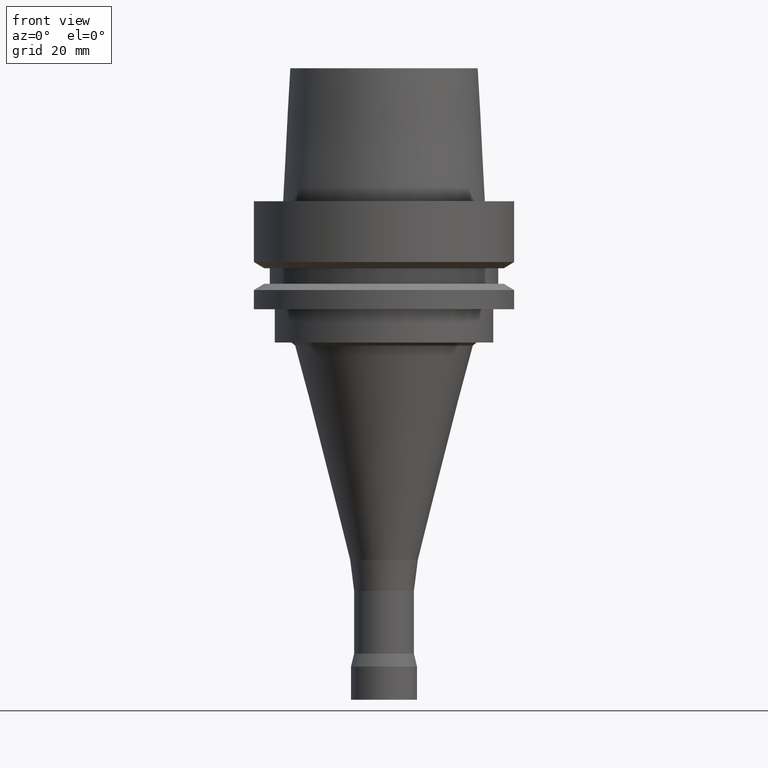
[diagram: clean part render]
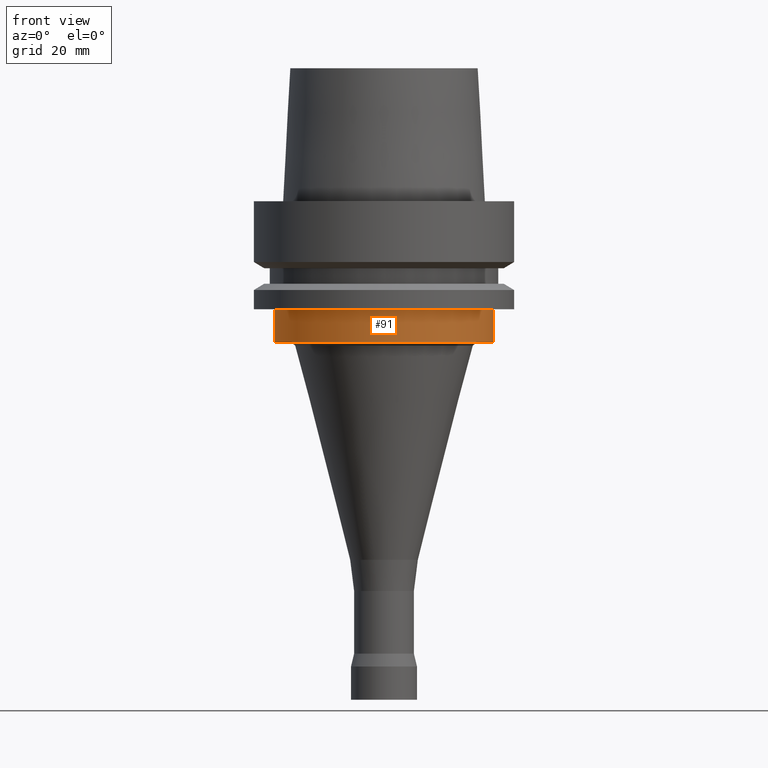
[diagram: same view with one face highlighted and labeled with its STEP entity id]
A machine part, front view. The second image highlights one B-rep face of the part: STEP entity #91.
In plain terms, the highlighted cylindrical surface (bore or boss wall) has radius 26.3 mm, axis along (-0, -0, 1).
Its self-contained STEP definition (entity closure, byte-faithful):
#91=ADVANCED_FACE('',(#142,#143),#144,.T.);
#142=FACE_BOUND('',#200,.T.);
#143=FACE_BOUND('',#201,.T.);
#144=CYLINDRICAL_SURFACE('',#202,26.3);
#200=EDGE_LOOP('',(#290));
#201=EDGE_LOOP('',(#291));
#202=AXIS2_PLACEMENT_3D('',#292,#293,#294);
#290=ORIENTED_EDGE('',*,*,#326,.F.);
#291=ORIENTED_EDGE('',*,*,#325,.T.);
#292=CARTESIAN_POINT('',(1.83697019872103E-015,3.67394039744206E-015,-30.0));
#293=DIRECTION('',(-6.12323399573677E-017,-1.22464679914735E-016,1.0));
#294=DIRECTION('',(-1.23259516440783E-032,1.0,1.22464679914735E-016));
#325=EDGE_CURVE('',#359,#359,#360,.T.);
#326=EDGE_CURVE('',#361,#361,#362,.T.);
#359=VERTEX_POINT('',#397);
#360=CIRCLE('',#398,26.3);
#361=VERTEX_POINT('',#399);
#362=CIRCLE('',#400,26.3);
#397=CARTESIAN_POINT('',(1.59204083889156E-015,26.3,-26.0));
#398=AXIS2_PLACEMENT_3D('',#450,#451,#452);
#399=CARTESIAN_POINT('',(2.0818995585505E-015,26.3,-34.0));
#400=AXIS2_PLACEMENT_3D('',#453,#454,#455);
#450=CARTESIAN_POINT('',(1.59204083889156E-015,3.18408167778312E-015,-26.0));
#451=DIRECTION('',(6.12323399573677E-017,1.22464679914735E-016,-1.0));
#452=DIRECTION('',(-1.23259516440783E-032,1.0,1.22464679914735E-016));
#453=CARTESIAN_POINT('',(2.0818995585505E-015,4.163799117101E-015,-34.0));
#454=DIRECTION('',(6.12323399573677E-017,1.22464679914735E-016,-1.0));
#455=DIRECTION('',(-1.23259516440783E-032,1.0,1.22464679914735E-016));